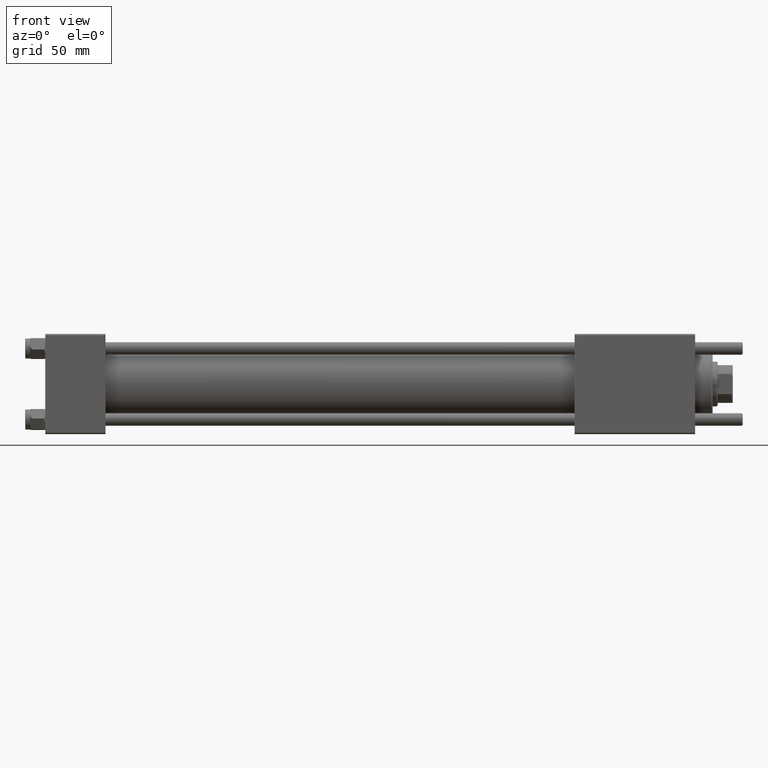
[diagram: clean part render]
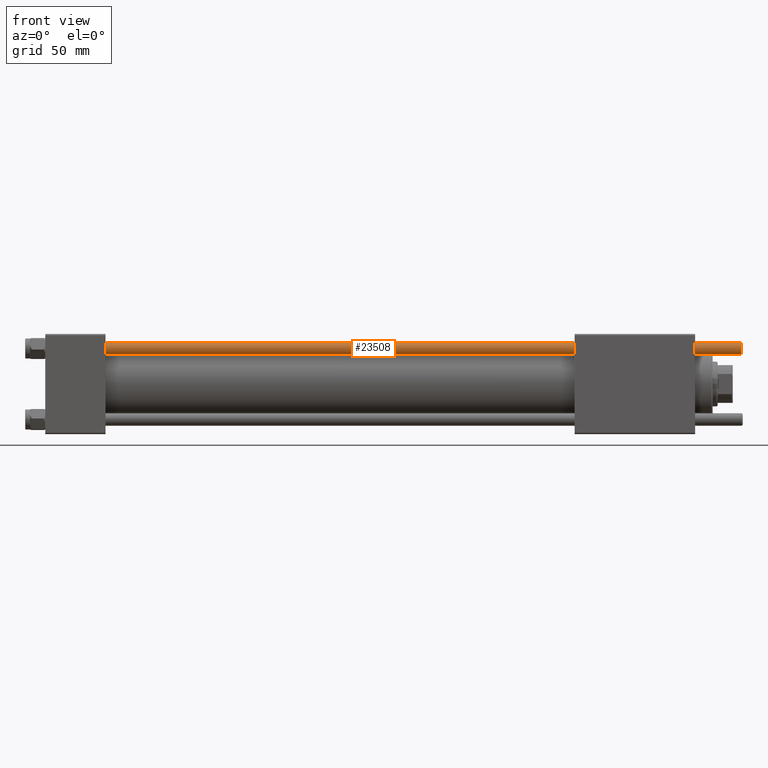
[diagram: same view with one face highlighted and labeled with its STEP entity id]
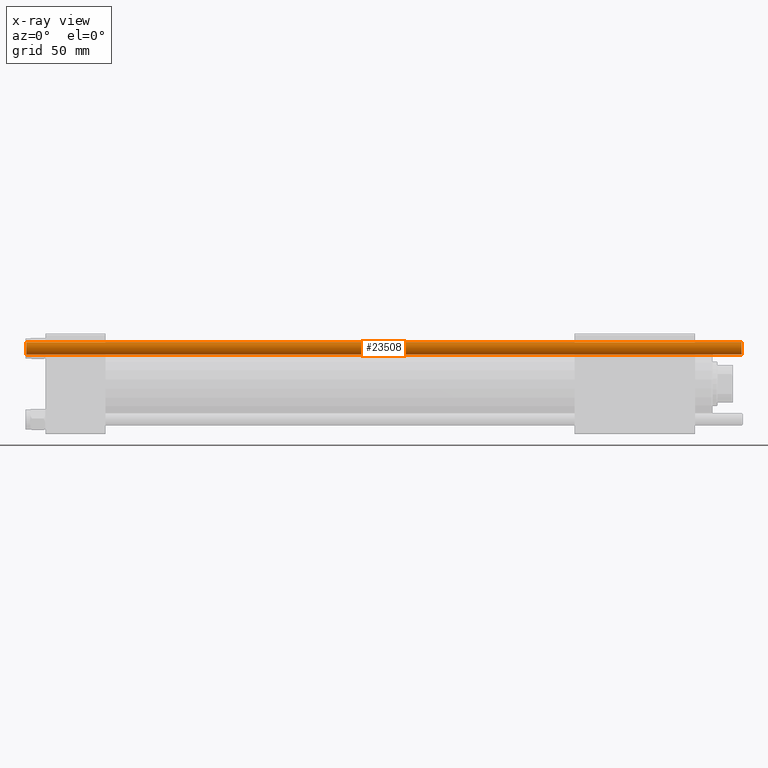
[diagram: x-ray of the same camera — body ghosted, the highlighted face saturated]
A machine part, front view. The second image highlights one B-rep face of the part: STEP entity #23508.
The next image is the same camera in x-ray: the body ghosted, the highlighted face saturated — about 0% of this face is hidden behind the body in this view.
In plain terms, the highlighted cylindrical surface (edge-blend (fillet) strip) has radius 2.5 mm, axis along (-1, 0, -0).
Its self-contained STEP definition (entity closure, byte-faithful):
#296 = VECTOR ( 'NONE', #13328, 1000.000000000000000 ) ;
#3149 = EDGE_CURVE ( 'NONE', #30645, #36281, #35109, .T. ) ;
#4945 = ORIENTED_EDGE ( 'NONE', *, *, #3149, .T. ) ;
#5060 = AXIS2_PLACEMENT_3D ( 'NONE', #56450, #48132, #30102 ) ;
#5942 = CARTESIAN_POINT ( 'NONE',  ( -2.500000000000000000, 0.000000000000000000, 285.4999999999999432 ) ) ;
#6655 = LINE ( 'NONE', #51075, #44555 ) ;
#9029 = CARTESIAN_POINT ( 'NONE',  ( 2.500000000000000000, 3.061616997868383141E-16, 286.0000000000000000 ) ) ;
#9883 = VERTEX_POINT ( 'NONE', #5942 ) ;
#10266 = DIRECTION ( 'NONE',  ( -0.000000000000000000, -0.000000000000000000, 1.000000000000000000 ) ) ;
#10940 = CARTESIAN_POINT ( 'NONE',  ( -2.500000000000000000, 0.000000000000000000, 0.4999999999999449329 ) ) ;
#12625 = DIRECTION ( 'NONE',  ( -1.000000000000000000, 0.000000000000000000, 0.000000000000000000 ) ) ;
#13328 = DIRECTION ( 'NONE',  ( -0.000000000000000000, -0.000000000000000000, -1.000000000000000000 ) ) ;
#13721 = CARTESIAN_POINT ( 'NONE',  ( 0.000000000000000000, 0.000000000000000000, 0.4999999999999449329 ) ) ;
#15614 = CARTESIAN_POINT ( 'NONE',  ( 2.500000000000000000, 3.061616997868383141E-16, 285.4999999999999432 ) ) ;
#16166 = CIRCLE ( 'NONE', #31716, 2.500000000000000000 ) ;
#21188 = CARTESIAN_POINT ( 'NONE',  ( 2.500000000000000000, 3.061616997868383141E-16, 0.4999999999999449329 ) ) ;
#21204 = CYLINDRICAL_SURFACE ( 'NONE', #28187, 2.500000000000000000 ) ;
#23508 = ADVANCED_FACE ( 'NONE', ( #56173 ), #21204, .T. ) ;
#24144 = DIRECTION ( 'NONE',  ( -0.000000000000000000, -0.000000000000000000, -1.000000000000000000 ) ) ;
#26656 = EDGE_LOOP ( 'NONE', ( #31046, #4945, #46156, #48823 ) ) ;
#27471 = DIRECTION ( 'NONE',  ( 1.000000000000000000, 0.000000000000000000, 0.000000000000000000 ) ) ;
#28187 = AXIS2_PLACEMENT_3D ( 'NONE', #51870, #30958, #12625 ) ;
#28859 = CIRCLE ( 'NONE', #5060, 2.500000000000000000 ) ;
#30102 = DIRECTION ( 'NONE',  ( 1.000000000000000000, 0.000000000000000000, 0.000000000000000000 ) ) ;
#30645 = VERTEX_POINT ( 'NONE', #15614 ) ;
#30958 = DIRECTION ( 'NONE',  ( -0.000000000000000000, -0.000000000000000000, -1.000000000000000000 ) ) ;
#31046 = ORIENTED_EDGE ( 'NONE', *, *, #39934, .T. ) ;
#31716 = AXIS2_PLACEMENT_3D ( 'NONE', #13721, #10266, #27471 ) ;
#35109 = LINE ( 'NONE', #9029, #296 ) ;
#36281 = VERTEX_POINT ( 'NONE', #21188 ) ;
#39591 = VERTEX_POINT ( 'NONE', #10940 ) ;
#39934 = EDGE_CURVE ( 'NONE', #9883, #30645, #28859, .T. ) ;
#44555 = VECTOR ( 'NONE', #24144, 1000.000000000000000 ) ;
#44714 = EDGE_CURVE ( 'NONE', #36281, #39591, #16166, .T. ) ;
#46156 = ORIENTED_EDGE ( 'NONE', *, *, #44714, .T. ) ;
#48132 = DIRECTION ( 'NONE',  ( 0.000000000000000000, 0.000000000000000000, -1.000000000000000000 ) ) ;
#48823 = ORIENTED_EDGE ( 'NONE', *, *, #50152, .F. ) ;
#50152 = EDGE_CURVE ( 'NONE', #9883, #39591, #6655, .T. ) ;
#51075 = CARTESIAN_POINT ( 'NONE',  ( -2.500000000000000000, 0.000000000000000000, 286.0000000000000000 ) ) ;
#51870 = CARTESIAN_POINT ( 'NONE',  ( 0.000000000000000000, 0.000000000000000000, 286.0000000000000000 ) ) ;
#56173 = FACE_OUTER_BOUND ( 'NONE', #26656, .T. ) ;
#56450 = CARTESIAN_POINT ( 'NONE',  ( 0.000000000000000000, 0.000000000000000000, 285.4999999999999432 ) ) ;